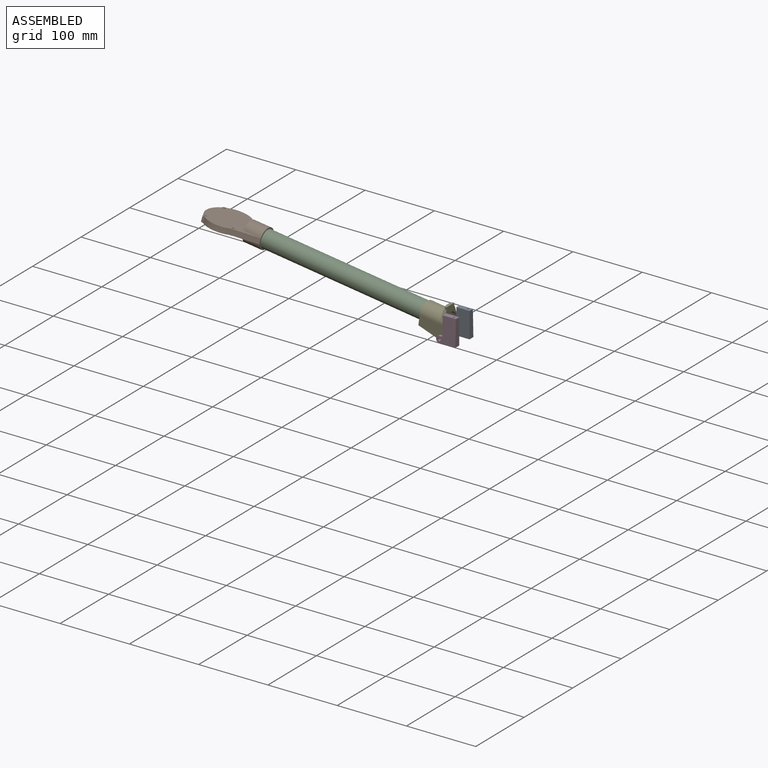
[diagram: assembled view]
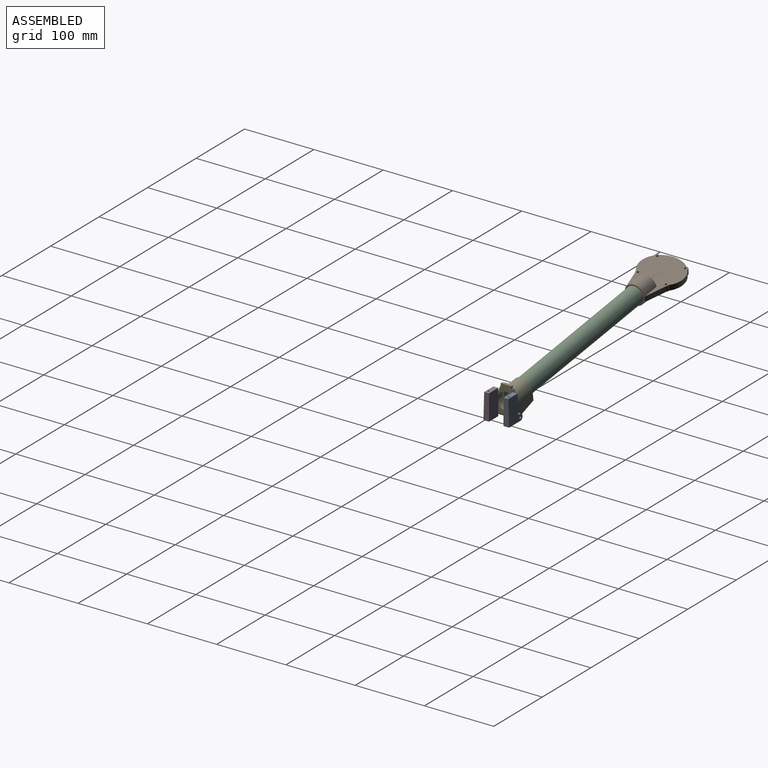
[diagram: assembled view, second angle]
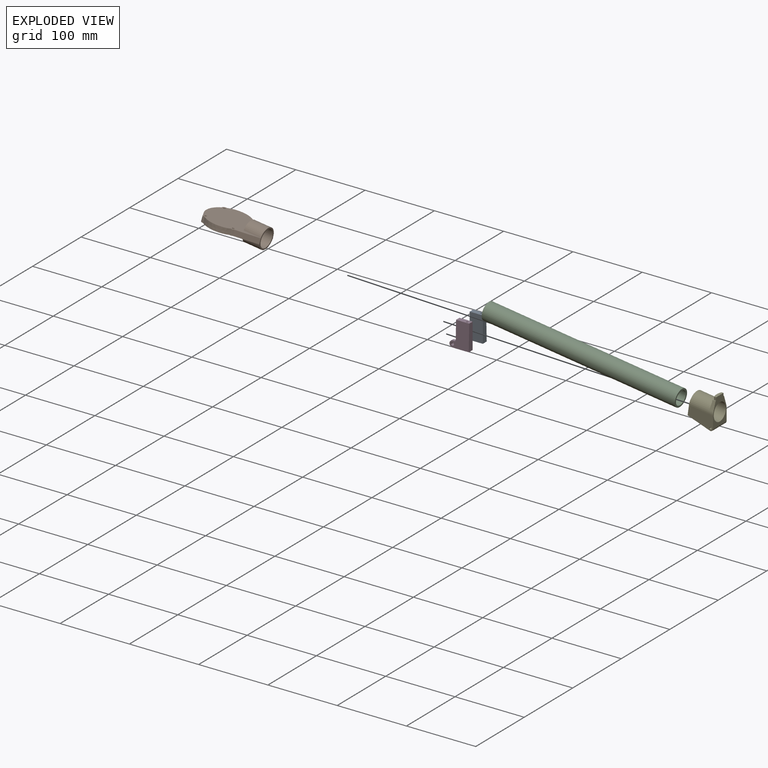
[diagram: exploded view]
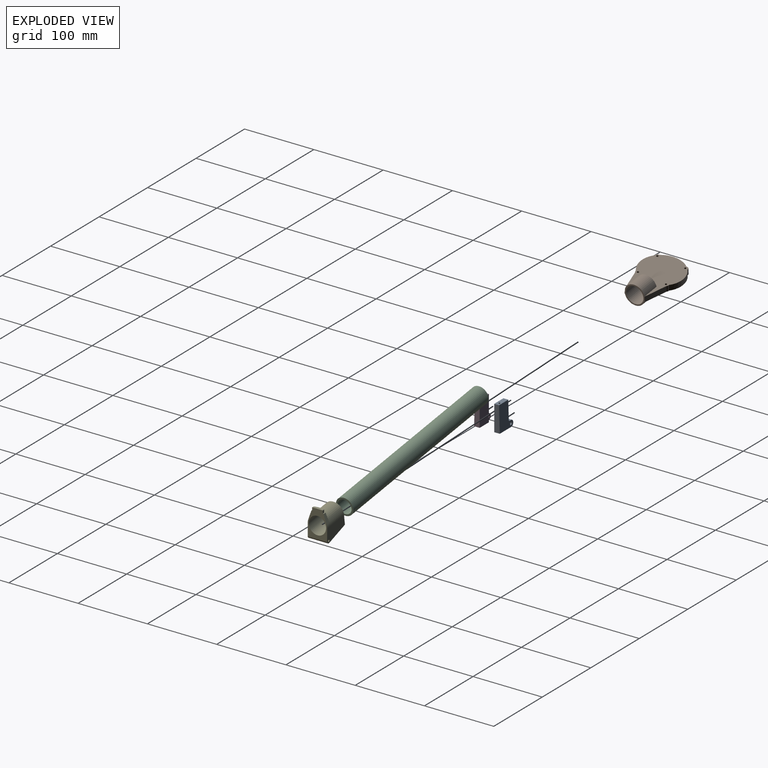
[diagram: exploded view, second angle]
ASSEMBLY  parts=5 mates=2
PART A: 15 faces, bbox 28x8x37 mm
  f0: cylinder r=2mm len=4.43mm, axis (0,-1,0), area 55mm2, adj f3,f9
  f1: plane 37x19mm, normal (0,-1,0), area 703mm2, adj f4,f5,f6,f8
  f2: cylinder r=4.5mm len=9mm, axis (0,-1,0), area 61.9mm2, adj f3,f7,f8,f9
  f3: plane 37x28mm, normal (0,1,0.03), area 763.9mm2, adj f0,f2,f4,f5,f6,f7,f8,f10
  f4: plane 37x8mm, normal (1,0,0), area 277.5mm2, adj f1,f3,f5,f8
  f5: plane 19x7mm, normal (0,0,1), area 128.1mm2, adj f1,f3,f4,f6,f14
  f6: plane 37x7.7mm, normal (-1,0,0), area 229.6mm2, adj f1,f3,f5,f8,f9,f10
  f7: plane 4.26x2.5mm, normal (0,0,1), area 10.6mm2, adj f2,f3,f9,f10
  f8: plane 23.5x8mm, normal (0,0,-1), area 167.3mm2, adj f1,f2,f3,f4,f6,f9,f12
  f9: plane 11x9mm, normal (0,-1,0), area 60.6mm2, adj f0,f2,f6,f7,f8,f10
  f10: cylinder r=2mm len=4.26mm, axis (0,1,0), area 13.3mm2, adj f3,f6,f7,f9
  f11: cone r=0mm half-angle=59deg, axis (0,0,-1), area 5.7mm2, adj f12
  f12: cylinder r=1.25mm len=13.5mm, axis (0,0,-1), area 106mm2, adj f8,f11
  f13: cone r=0mm half-angle=59deg, axis (0,0,1), area 5.7mm2, adj f14
  f14: cylinder r=1.25mm len=13.5mm, axis (0,0,1), area 106mm2, adj f5,f13
PART B: 22 faces, bbox 88.7x62x32.2 mm
  f0: plane 85.74x61.16mm, normal (0.14,0,0.99), area 3234.5mm2, adj f2,f3,f4,f5,f6,f7,f8,f9
  f1: plane 86.15x62mm, normal (-0.14,0,-0.99), area 3325.5mm2, adj f2,f3,f4,f5,f6,f7,f8,f9
  f2: cone r=4mm half-angle=3deg, axis (-0.14,0,-0.99), area 59.2mm2, adj f0,f1,f3,f14
  f3: cone r=31mm half-angle=3deg, axis (-0.14,0,-0.99), area 337.2mm2, adj f0,f1,f2,f4
  f4: cone r=4mm half-angle=3deg, axis (-0.14,0,-0.99), area 59.2mm2, adj f0,f1,f3,f5
  f5: cone r=31mm half-angle=3deg, axis (-0.14,0,-0.99), area 337.2mm2, adj f0,f1,f4,f6
  f6: cone r=4mm half-angle=3deg, axis (-0.14,0,-0.99), area 30.1mm2, adj f0,f1,f5,f7
  f7: plane 33.82x12.55mm, normal (0.25,-0.97,0.02), area 274mm2, adj f0,f1,f6,f8
  f8: plane 29x28.72mm, normal (0.99,0,-0.14), area 169.2mm2, adj f0,f1,f7,f9,f16,f19,f21
  f9: plane 33.82x12.55mm, normal (0.25,0.97,0.02), area 274mm2, adj f0,f1,f8,f10
  f10: cone r=4mm half-angle=3deg, axis (-0.14,0,-0.99), area 30.1mm2, adj f0,f1,f9,f14
  f11: cylinder r=1.5mm len=8.34mm, axis (-0.14,0,-0.99), area 75.4mm2, adj f0,f1
  f12: cylinder r=1.5mm len=8.34mm, axis (-0.14,0,-0.99), area 75.4mm2, adj f0,f1
  f13: cylinder r=1.5mm len=8.34mm, axis (-0.14,0,-0.99), area 75.4mm2, adj f0,f1
  f14: cone r=31mm half-angle=3deg, axis (-0.14,0,-0.99), area 337.2mm2, adj f0,f1,f2,f10
  f15: cylinder r=1.5mm len=8.34mm, axis (-0.14,0,-0.99), area 75.4mm2, adj f0,f1
  f16: cylinder r=14.5mm len=27.87mm, axis (-0.99,0,0.14), area 936.2mm2, adj f1,f8,f17
  f17: plane 27.87x10.4mm, normal (-0.99,0,0.14), area 215.7mm2, adj f1,f16
  f18: plane 27.87x10.4mm, normal (-0.99,0,0.14), area 215.7mm2, adj f0,f19
  f19: cylinder r=14.5mm len=27.87mm, axis (-0.99,0,0.14), area 936.2mm2, adj f0,f8,f18
  f20: plane 25x24.76mm, normal (0.99,0,-0.14), area 490.9mm2, adj f21
  f21: cylinder r=12.5mm len=28.03mm, axis (0.99,0,-0.14), area 1845.7mm2, adj f8,f20
PART C: 4 faces, bbox 282.2x25x63.9 mm
  f0: cylinder r=12.5mm len=282.24mm, axis (0.99,0,-0.14), area 22109mm2, adj f1,f3
  f1: plane 25x24.76mm, normal (0.99,0,-0.14), area 176.7mm2, adj f0,f2
  f2: cylinder r=10mm len=281.54mm, axis (0.99,0,-0.14), area 17687.2mm2, adj f1,f3
  f3: plane 25x24.76mm, normal (-0.99,0,0.14), area 176.7mm2, adj f0,f2
PART D: 15 faces, bbox 28x8x37 mm
  f0: cylinder r=2mm len=4.43mm, axis (0,1,0), area 55mm2, adj f3,f9
  f1: plane 37x19mm, normal (0,1,0), area 703mm2, adj f4,f5,f6,f8
  f2: cylinder r=4.5mm len=9mm, axis (0,1,0), area 61.9mm2, adj f3,f7,f8,f9
  f3: plane 37x28mm, normal (0,-1,0.03), area 763.9mm2, adj f0,f2,f4,f5,f6,f7,f8,f10
  f4: plane 37x8mm, normal (1,0,0), area 277.5mm2, adj f1,f3,f5,f8
  f5: plane 19x7mm, normal (0,0,1), area 128.1mm2, adj f1,f3,f4,f6,f14
  f6: plane 37x7.7mm, normal (-1,0,0), area 229.6mm2, adj f1,f3,f5,f8,f9,f10
  f7: plane 4.26x2.5mm, normal (0,0,1), area 10.6mm2, adj f2,f3,f9,f10
  f8: plane 23.5x8mm, normal (0,0,-1), area 167.3mm2, adj f1,f2,f3,f4,f6,f9,f12
  f9: plane 11x9mm, normal (0,1,0), area 60.6mm2, adj f0,f2,f6,f7,f8,f10
  f10: cylinder r=2mm len=4.26mm, axis (0,-1,0), area 13.3mm2, adj f3,f6,f7,f9
  f11: cone r=0mm half-angle=59deg, axis (0,0,-1), area 5.7mm2, adj f12
  f12: cylinder r=1.25mm len=13.5mm, axis (0,0,-1), area 106mm2, adj f8,f11
  f13: cone r=0mm half-angle=59deg, axis (0,0,1), area 5.7mm2, adj f14
  f14: cylinder r=1.25mm len=13.5mm, axis (0,0,1), area 106mm2, adj f5,f13
PART E: 20 faces, bbox 40.2x28x42.5 mm
  f0: plane 36.7x25.56mm, normal (0,1,0), area 639.5mm2, adj f3,f4,f7,f8,f10,f15
  f1: plane 36.7x25.56mm, normal (0,-1,0), area 639.5mm2, adj f3,f4,f7,f8,f10,f15
  f2: plane 8.85x4.5mm, normal (0,0,1), area 8.8mm2, adj f4,f5,f11,f13,f18
  f3: plane 28x27.73mm, normal (-0.99,0,0.14), area 209mm2, adj f0,f1,f7,f15,f19
  f4: plane 39.01x28.01mm, normal (1,0,0), area 460.2mm2, adj f0,f1,f2,f8,f9,f11,f12,f14
  f5: plane 19.69x2.8mm, normal (-1,0,0), area 52.3mm2, adj f2,f6,f9,f16,f17,f18
  f6: plane 13.18x9.18mm, normal (-0.99,0,0.14), area 17.7mm2, adj f5,f15,f18
  f7: plane 32.02x28mm, normal (-0.34,0,-0.94), area 952.5mm2, adj f0,f1,f3,f8
  f8: cylinder r=3.5mm len=28mm, axis (0,1,0), area 187.7mm2, adj f0,f1,f4,f7
  f9: plane 8.85x4.5mm, normal (0,0,1), area 8.8mm2, adj f4,f5,f12,f13,f17
  f10: cylinder r=1.5mm len=28mm, axis (0,1,0), area 263.9mm2, adj f0,f1
  f11: plane 4.25x3mm, normal (0,-1,0), area 12.7mm2, adj f2,f4,f13,f14
  f12: plane 4.25x3mm, normal (0,1,0), area 12.7mm2, adj f4,f9,f13,f14
  f13: cylinder r=20.13mm len=15.25mm, axis (0,0,-1), area 66.5mm2, adj f2,f9,f11,f12,f14
  f14: plane 15.25x4.5mm, normal (0,0,1), area 61.1mm2, adj f4,f11,f12,f13
  f15: cylinder r=14mm len=36.7mm, axis (-0.99,0,0.14), area 1316.7mm2, adj f0,f1,f3,f4,f6,f16,f17,f18
  f16: plane 13.18x9.18mm, normal (-0.99,0,0.14), area 17.7mm2, adj f5,f15,f17
  f17: plane 12.79x5.79mm, normal (0.05,0.94,0.33), area 66.1mm2, adj f4,f5,f9,f15,f16
  f18: plane 12.79x5.79mm, normal (0.05,-0.94,0.33), area 66.1mm2, adj f2,f4,f5,f6,f15
  f19: cylinder r=12.5mm len=39.99mm, axis (-0.99,0,0.14), area 2756.2mm2, adj f3,f4
PLACE A at identity fixed
PLACE B rot(axis=(-0.99,0,0.14),8deg) t=(0.02,-2.44,0.17)mm
PLACE C at identity
PLACE D at identity
PLACE E at identity
MATE revolute D.f0 <-> E.f8  axis (0,-1,0) through (0,0,0)mm
MATE fastened B.f16 <-> C.f0  axis (0.99,0,-0.14) through (-285.26,0,57.76)mm
